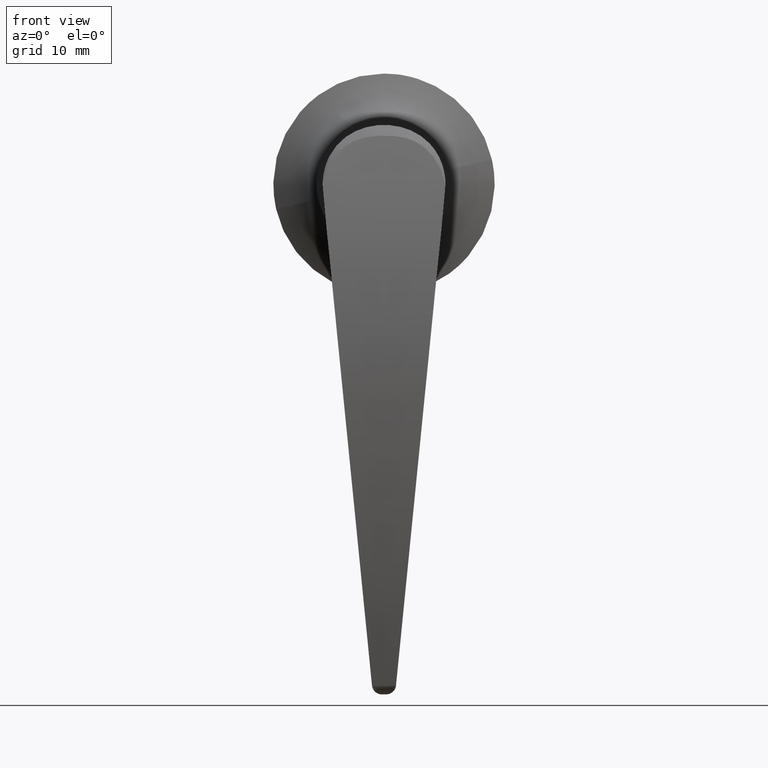
[diagram: clean part render]
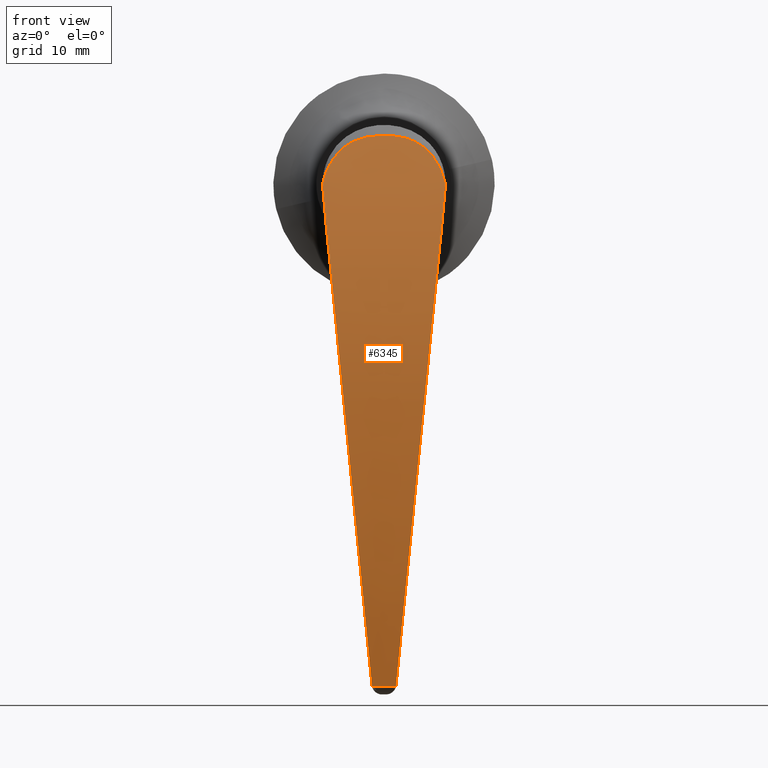
[diagram: same view with one face highlighted and labeled with its STEP entity id]
A machine part, front view. The second image highlights one B-rep face of the part: STEP entity #6345.
In plain terms, the highlighted face is a freeform B-spline surface patch.
Its self-contained STEP definition (entity closure, byte-faithful):
#3911=CARTESIAN_POINT('',(-18.522821743191852,1.945729727384595,-81.636533285594595));
#3912=VERTEX_POINT('',#3911);
#3935=CARTESIAN_POINT('',(-18.538468767128400,1.951048903006880,-81.589922599494400));
#3936=VERTEX_POINT('',#3935);
#3937=CARTESIAN_POINT('',(-18.522821743191852,1.945729727384595,-81.636533285594595));
#3938=CARTESIAN_POINT('',(-18.528038561310002,1.947503029678947,-81.620994270942447));
#3939=CARTESIAN_POINT('',(-18.533254243655630,1.949276089861138,-81.605457361304516));
#3940=CARTESIAN_POINT('',(-18.538468767128400,1.951048903006880,-81.589922599494400));
#3941=B_SPLINE_CURVE_WITH_KNOTS('',3,(#3937,#3938,#3939,#3940),.UNSPECIFIED.,.F.,.U.,(4,4),(0.018348037065128,0.018721215441242),.UNSPECIFIED.);
#3942=EDGE_CURVE('',#3912,#3936,#3941,.T.);
#4058=CARTESIAN_POINT('',(-18.538482525306051,-1.951052971205105,-81.589881612042703));
#4059=VERTEX_POINT('',#4058);
#4067=CARTESIAN_POINT('',(-18.522821743191798,-1.945729187791045,-81.636533285594595));
#4068=VERTEX_POINT('',#4067);
#4069=CARTESIAN_POINT('',(-18.522821743191798,-1.945729187791045,-81.636533285594595));
#4070=CARTESIAN_POINT('',(-18.528043149388171,-1.947504026443012,-81.620980604716621));
#4071=CARTESIAN_POINT('',(-18.533263417813370,-1.949278622560107,-81.605430032557095));
#4072=CARTESIAN_POINT('',(-18.538482525306051,-1.951052971205105,-81.589881612042703));
#4073=B_SPLINE_CURVE_WITH_KNOTS('',3,(#4069,#4070,#4071,#4072),.UNSPECIFIED.,.F.,.U.,(4,4),(0.018348037065160,0.018721543643486),.UNSPECIFIED.);
#4074=EDGE_CURVE('',#4068,#4059,#4073,.T.);
#4117=CARTESIAN_POINT('',(-18.522821743191830,1.945729727384595,-81.636533285594581));
#4118=CARTESIAN_POINT('',(-18.522821743191830,0.648576755659378,-81.636533285594581));
#4119=CARTESIAN_POINT('',(-18.522821743191830,-0.648576216065839,-81.636533285594581));
#4120=CARTESIAN_POINT('',(-18.522821743191830,-1.945729187791056,-81.636533285594581));
#4121=B_SPLINE_CURVE_WITH_KNOTS('',3,(#4117,#4118,#4119,#4120),.UNSPECIFIED.,.F.,.U.,(4,4),(0.000356096700383,1.0),.UNSPECIFIED.);
#4122=EDGE_CURVE('',#3912,#4068,#4121,.T.);
#5221=CARTESIAN_POINT('',(-21.998726049434900,10.0,4.336809E-016));
#5222=VERTEX_POINT('',#5221);
#5245=CARTESIAN_POINT('',(-21.998726049434900,-10.0,1.029445E-014));
#5246=VERTEX_POINT('',#5245);
#5247=CARTESIAN_POINT('',(-21.998726049434850,-10.0,4.000706E-014));
#5248=CARTESIAN_POINT('',(-21.957238623841821,-9.967963128859941,0.156955069083634));
#5249=CARTESIAN_POINT('',(-21.874504327754721,-9.904075144857107,0.469955140124807));
#5250=CARTESIAN_POINT('',(-21.749353688990610,-9.783176203726780,0.932316553144498));
#5251=CARTESIAN_POINT('',(-21.624253369680432,-9.643866775025090,1.387323989765963));
#5252=CARTESIAN_POINT('',(-21.499264353858131,-9.484045545552444,1.834645248555372));
#5253=CARTESIAN_POINT('',(-21.374594577346180,-9.303862836306800,2.274417376421788));
#5254=CARTESIAN_POINT('',(-21.250403386060292,-9.102884060147440,2.706639847728118));
#5255=CARTESIAN_POINT('',(-21.126841249725750,-8.880836866619797,3.131379057438784));
#5256=CARTESIAN_POINT('',(-20.943290116798060,-8.516913021928973,3.755175500066647));
#5257=CARTESIAN_POINT('',(-20.706574975045040,-7.967748975923366,4.544850386704427));
#5258=CARTESIAN_POINT('',(-20.433117973568510,-7.165425577312663,5.438986196207708));
#5259=CARTESIAN_POINT('',(-20.212704833562739,-6.361109732801308,6.148911169435178));
#5260=CARTESIAN_POINT('',(-20.043475963933489,-5.574838347528167,6.689085524553773));
#5261=CARTESIAN_POINT('',(-19.921209758273001,-4.825223499424113,7.077145326491366));
#5262=CARTESIAN_POINT('',(-19.821648593548840,-4.010822312164740,7.391848715670774));
#5263=CARTESIAN_POINT('',(-19.730442711724709,-2.969380556114035,7.679271359002542));
#5264=CARTESIAN_POINT('',(-19.668319241911060,-1.618766959458829,7.874502514202773));
#5265=CARTESIAN_POINT('',(-19.650351063996919,0.009491365720441,7.930909595026320));
#5266=CARTESIAN_POINT('',(-19.669917487169741,1.637813500932760,7.869484114315361));
#5267=CARTESIAN_POINT('',(-19.737414878960202,3.082037464883438,7.657348730918315));
#5268=CARTESIAN_POINT('',(-19.850713775788179,4.297808431409859,7.300212774595358));
#5269=CARTESIAN_POINT('',(-19.998615513434590,5.343271895752658,6.831949396401056));
#5270=CARTESIAN_POINT('',(-20.178254527863078,6.214935538510728,6.259313886322052));
#5271=CARTESIAN_POINT('',(-20.372159351373050,6.943124197603897,5.635450919878191));
#5272=CARTESIAN_POINT('',(-20.568614893421270,7.569365793172176,4.996735850766910));
#5273=CARTESIAN_POINT('',(-20.781373910132231,8.137895192457686,4.295948151799339));
#5274=CARTESIAN_POINT('',(-21.011030979692158,8.655316447392677,3.527038123070453));
#5275=CARTESIAN_POINT('',(-21.252860931216141,9.112758656438492,2.700930055216148));
#5276=CARTESIAN_POINT('',(-21.502323563445771,9.494651601303417,1.826581109721399));
#5277=CARTESIAN_POINT('',(-21.752312880124411,9.798713951156374,0.927023255511267));
#5278=CARTESIAN_POINT('',(-21.916495707621589,9.932828993495065,0.309356189780212));
#5279=CARTESIAN_POINT('',(-21.998726049434850,9.999999999999998,4.000706E-014));
#5280=B_SPLINE_CURVE_WITH_KNOTS('',3,(#5247,#5248,#5249,#5250,#5251,#5252,#5253,#5254,#5255,#5256,#5257,#5258,#5259,#5260,#5261,#5262,#5263,#5264,#5265,#5266,#5267,#5268,#5269,#5270,#5271,#5272,#5273,#5274,#5275,#5276,#5277,#5278,#5279),.UNSPECIFIED.,.F.,.U.,(4,1,1,1,1,1,1,1,1,1,1,1,1,1,1,1,1,1,1,1,1,1,1,1,1,1,1,1,1,1,4),(0.0,0.017405986124197,0.034711047723561,0.051948970617280,0.069155202238965,0.086366631953786,0.103621329930850,0.120958252476884,0.138416923870189,0.181997513556247,0.224896193890656,0.267753899091608,0.296892141122547,0.326599741637168,0.357251556725328,0.389171991487077,0.440455612343956,0.500480227016070,0.560369849102151,0.611677311487498,0.653716883135788,0.693789789171920,0.732714867741790,0.764575721855532,0.796559469362654,0.828936893119861,0.861974122613704,0.896896352379049,0.931340762858974,0.965612283423236,1.0),.UNSPECIFIED.);
#5281=EDGE_CURVE('',#5246,#5222,#5280,.T.);
#6164=CARTESIAN_POINT('',(-18.538482525306041,-1.951052971205106,-81.589881612042760));
#6165=CARTESIAN_POINT('',(-19.563907147632211,-2.254263981035978,-78.535004268335584));
#6166=CARTESIAN_POINT('',(-22.019259061449429,-2.992834644584865,-71.093858382738119));
#6167=CARTESIAN_POINT('',(-23.727205180541350,-3.763699646079255,-63.327705863507191));
#6168=CARTESIAN_POINT('',(-25.508241693703152,-4.790591693096650,-52.980306095169801));
#6169=CARTESIAN_POINT('',(-26.395106403525698,-5.777982468618890,-43.037524287483997));
#6170=CARTESIAN_POINT('',(-26.603699679807050,-6.772904153634290,-32.994267603728147));
#6171=CARTESIAN_POINT('',(-26.083780408826900,-7.774242781686610,-22.978134084458450));
#6172=CARTESIAN_POINT('',(-24.844020428148049,-8.742612420642860,-12.949421492346140));
#6173=CARTESIAN_POINT('',(-23.321127598773302,-9.579962533563540,-5.300858690145170));
#6174=CARTESIAN_POINT('',(-22.260669313888720,-9.914787197395112,-0.996669521965935));
#6175=CARTESIAN_POINT('',(-21.998726049434850,-10.0,4.000706E-014));
#6176=B_SPLINE_CURVE_WITH_KNOTS('',3,(#6164,#6165,#6166,#6167,#6168,#6169,#6170,#6171,#6172,#6173,#6174,#6175),.UNSPECIFIED.,.F.,.U.,(4,1,1,1,1,1,1,1,1,4),(0.018721543643517,0.092106282813239,0.202469824930323,0.311190460753007,0.418898556285064,0.526171207140988,0.633467553158656,0.741268558729060,0.850151234908520,0.883127176702099),.UNSPECIFIED.);
#6177=EDGE_CURVE('',#4059,#5246,#6176,.T.);
#6242=CARTESIAN_POINT('',(-18.538468767128389,1.951048903006880,-81.589922599494358));
#6243=CARTESIAN_POINT('',(-19.563898376366609,2.254261342636921,-78.535030850372053));
#6244=CARTESIAN_POINT('',(-22.019257144829290,2.992833779536878,-71.093867097746028));
#6245=CARTESIAN_POINT('',(-23.727205180541350,3.763699646079205,-63.327705863507191));
#6246=CARTESIAN_POINT('',(-25.508241693703152,4.790591693096641,-52.980306095169801));
#6247=CARTESIAN_POINT('',(-26.395106403525698,5.777982468618800,-43.037524287483997));
#6248=CARTESIAN_POINT('',(-26.603699679807050,6.772904153634220,-32.994267603728147));
#6249=CARTESIAN_POINT('',(-26.083780408826900,7.774242781686510,-22.978134084458450));
#6250=CARTESIAN_POINT('',(-24.844020428148049,8.742612420642780,-12.949421492346140));
#6251=CARTESIAN_POINT('',(-23.321127598773302,9.579962533563261,-5.300858690145170));
#6252=CARTESIAN_POINT('',(-22.260669313888720,9.914787197395073,-0.996669521965935));
#6253=CARTESIAN_POINT('',(-21.998726049434850,9.999999999999998,4.000706E-014));
#6254=B_SPLINE_CURVE_WITH_KNOTS('',3,(#6242,#6243,#6244,#6245,#6246,#6247,#6248,#6249,#6250,#6251,#6252,#6253),.UNSPECIFIED.,.F.,.U.,(4,1,1,1,1,1,1,1,1,4),(0.018721215441242,0.092106282813239,0.202469824930323,0.311190460753007,0.418898556285064,0.526171207140988,0.633467553158656,0.741268558729060,0.850151234908520,0.883127176702099),.UNSPECIFIED.);
#6255=EDGE_CURVE('',#3936,#5222,#6254,.T.);
#6284=CARTESIAN_POINT('',(-18.323048627805939,-1.906284205694508,-82.231585153759994));
#6285=CARTESIAN_POINT('',(-18.323048627805939,-0.635428072360510,-82.231585153759980));
#6286=CARTESIAN_POINT('',(-18.323048627805939,0.635428060973489,-82.231585153759980));
#6287=CARTESIAN_POINT('',(-18.323048627805939,1.906284194307487,-82.231585153759994));
#6288=CARTESIAN_POINT('',(-19.425509210093502,-2.234949546697703,-78.953123365511217));
#6289=CARTESIAN_POINT('',(-19.425509210093502,-0.744983186682660,-78.953123365511246));
#6290=CARTESIAN_POINT('',(-19.425509210093480,0.744983173332384,-78.953123365511217));
#6291=CARTESIAN_POINT('',(-19.425509210093480,2.234949533347431,-78.953123365511217));
#6292=CARTESIAN_POINT('',(-21.989260945473120,-3.009166538591191,-71.230263988739239));
#6293=CARTESIAN_POINT('',(-21.989260945473120,-1.003055518855397,-71.230263988739239));
#6294=CARTESIAN_POINT('',(-21.989260945473060,1.003055500880398,-71.230263988739239));
#6295=CARTESIAN_POINT('',(-21.989260945473060,3.009166520616195,-71.230263988739239));
#6296=CARTESIAN_POINT('',(-23.727205170940721,-3.801435815899798,-63.327705881300780));
#6297=CARTESIAN_POINT('',(-23.727205170940710,-1.267145279535798,-63.327705881300780));
#6298=CARTESIAN_POINT('',(-23.727205170940710,1.267145256828202,-63.327705881300780));
#6299=CARTESIAN_POINT('',(-23.727205170940721,3.801435793192201,-63.327705881300780));
#6300=CARTESIAN_POINT('',(-25.508241693703152,-4.838623844228752,-52.980306095169801));
#6301=CARTESIAN_POINT('',(-25.508241693703152,-1.612874624377290,-52.980306095169801));
#6302=CARTESIAN_POINT('',(-25.508241693703152,1.612874595474177,-52.980306095169801));
#6303=CARTESIAN_POINT('',(-25.508241693703152,4.838623815325645,-52.980306095169801));
#6304=CARTESIAN_POINT('',(-26.395106403525698,-5.835914545688048,-43.037524287483997));
#6305=CARTESIAN_POINT('',(-26.395106403525698,-1.945304860182830,-43.037524287483997));
#6306=CARTESIAN_POINT('',(-26.395106403525698,1.945304825322407,-43.037524287483997));
#6307=CARTESIAN_POINT('',(-26.395106403525698,5.835914510827631,-43.037524287483997));
#6308=CARTESIAN_POINT('',(-26.603699679807050,-6.840811664178217,-32.994267603728147));
#6309=CARTESIAN_POINT('',(-26.603699679807040,-2.280270568347083,-32.994267603728147));
#6310=CARTESIAN_POINT('',(-26.603699679807050,2.280270527484026,-32.994267603728147));
#6311=CARTESIAN_POINT('',(-26.603699679807050,6.840811623315153,-32.994267603728147));
#6312=CARTESIAN_POINT('',(-26.083780408826900,-7.852190064224950,-22.978134084458450));
#6313=CARTESIAN_POINT('',(-26.083780408826900,-2.617396703709812,-22.978134084458450));
#6314=CARTESIAN_POINT('',(-26.083780408826900,2.617396656805342,-22.978134084458450));
#6315=CARTESIAN_POINT('',(-26.083780408826900,7.852190017320476,-22.978134084458450));
#6316=CARTESIAN_POINT('',(-24.844020428148049,-8.830268916537269,-12.949421492346140));
#6317=CARTESIAN_POINT('',(-24.844020428148049,-2.943422989761399,-12.949421492346140));
#6318=CARTESIAN_POINT('',(-24.844020428148049,2.943422937014466,-12.949421492346140));
#6319=CARTESIAN_POINT('',(-24.844020428148049,8.830268863790346,-12.949421492346140));
#6320=CARTESIAN_POINT('',(-23.321127598773302,-9.676014595131443,-5.300858690145170));
#6321=CARTESIAN_POINT('',(-23.321127598773302,-3.225338217643525,-5.300858690145171));
#6322=CARTESIAN_POINT('',(-23.321127598773302,3.225338159844408,-5.300858690145171));
#6323=CARTESIAN_POINT('',(-23.321127598773302,9.676014537332332,-5.300858690145170));
#6324=CARTESIAN_POINT('',(-21.560565462494569,-10.237460493779910,1.844912704061288));
#6325=CARTESIAN_POINT('',(-21.560565462494569,-3.412486851644111,1.844912704061288));
#6326=CARTESIAN_POINT('',(-21.560565462494569,3.412486790491661,1.844912704061288));
#6327=CARTESIAN_POINT('',(-21.560565462494569,10.237460432627451,1.844912704061288));
#6328=CARTESIAN_POINT('',(-20.386375992426458,-10.649264166885320,5.630012020410202));
#6329=CARTESIAN_POINT('',(-20.386375992426458,-3.549754743499235,5.630012020410202));
#6330=CARTESIAN_POINT('',(-20.386375992426458,3.549754679886834,5.630012020410202));
#6331=CARTESIAN_POINT('',(-20.386375992426458,10.649264103272900,5.630012020410202));
#6332=CARTESIAN_POINT('',(-19.493229539254070,-10.965774801574550,8.423227272604359));
#6333=CARTESIAN_POINT('',(-19.493229539254070,-3.655258289025897,8.423227272604359));
#6334=CARTESIAN_POINT('',(-19.493229539254070,3.655258223522757,8.423227272604359));
#6335=CARTESIAN_POINT('',(-19.493229539254070,10.965774736071410,8.423227272604359));
#6336=B_SPLINE_SURFACE_WITH_KNOTS('',3,3,((#6284,#6288,#6292,#6296,#6300,#6304,#6308,#6312,#6316,#6320,#6324,#6328,#6332),(#6285,#6289,#6293,#6297,#6301,#6305,#6309,#6313,#6317,#6321,#6325,#6329,#6333),(#6286,#6290,#6294,#6298,#6302,#6306,#6310,#6314,#6318,#6322,#6326,#6330,#6334),(#6287,#6291,#6295,#6299,#6303,#6307,#6311,#6315,#6319,#6323,#6327,#6331,#6335)),.UNSPECIFIED.,.F.,.F.,.U.,(4,4),(4,1,1,1,1,1,1,1,1,1,4),(0.0,21.931549537645949),(0.0,10.423328040982749,25.073477870648460,39.505540976135720,53.803194958087083,68.043046067590808,82.286042578765446,96.596029854450961,111.049602921105500,115.426976814539800,127.858977846614710),.UNSPECIFIED.);
#6337=ORIENTED_EDGE('',*,*,#3942,.F.);
#6338=ORIENTED_EDGE('',*,*,#4122,.T.);
#6339=ORIENTED_EDGE('',*,*,#4074,.T.);
#6340=ORIENTED_EDGE('',*,*,#6177,.T.);
#6341=ORIENTED_EDGE('',*,*,#5281,.T.);
#6342=ORIENTED_EDGE('',*,*,#6255,.F.);
#6343=EDGE_LOOP('',(#6337,#6338,#6339,#6340,#6341,#6342));
#6344=FACE_OUTER_BOUND('',#6343,.T.);
#6345=ADVANCED_FACE('',(#6344),#6336,.F.);